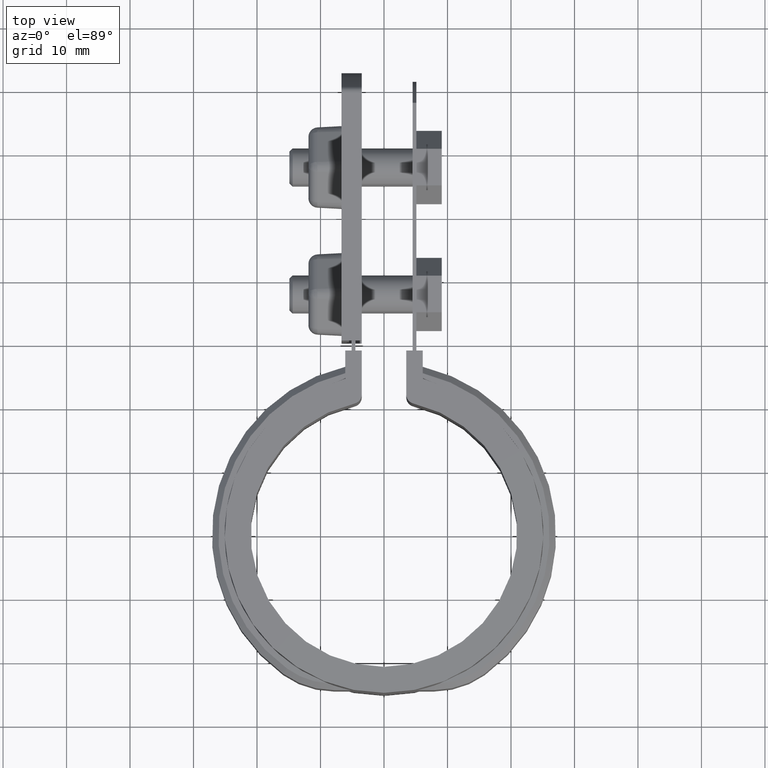
[diagram: clean part render]
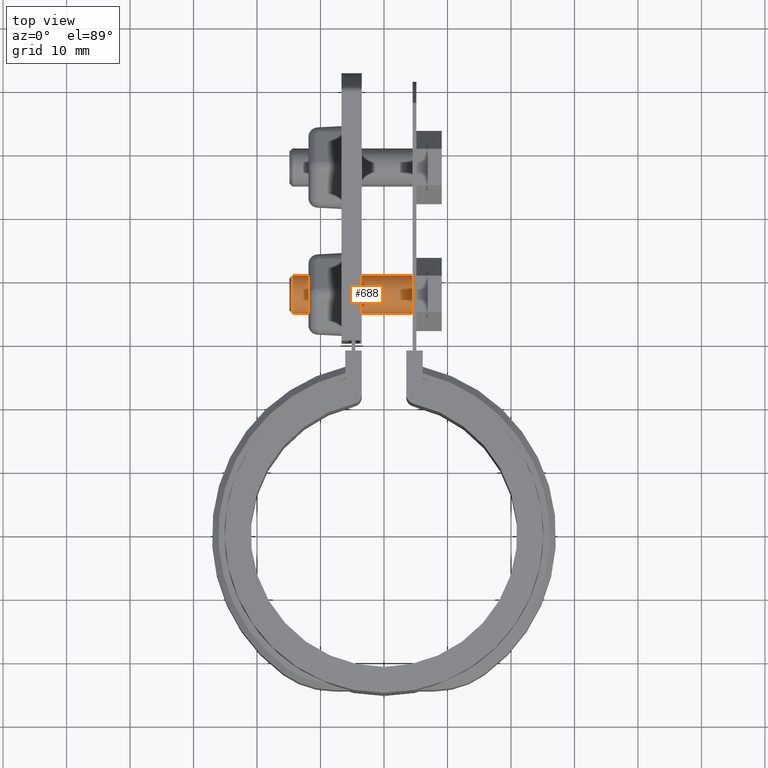
[diagram: same view with one face highlighted and labeled with its STEP entity id]
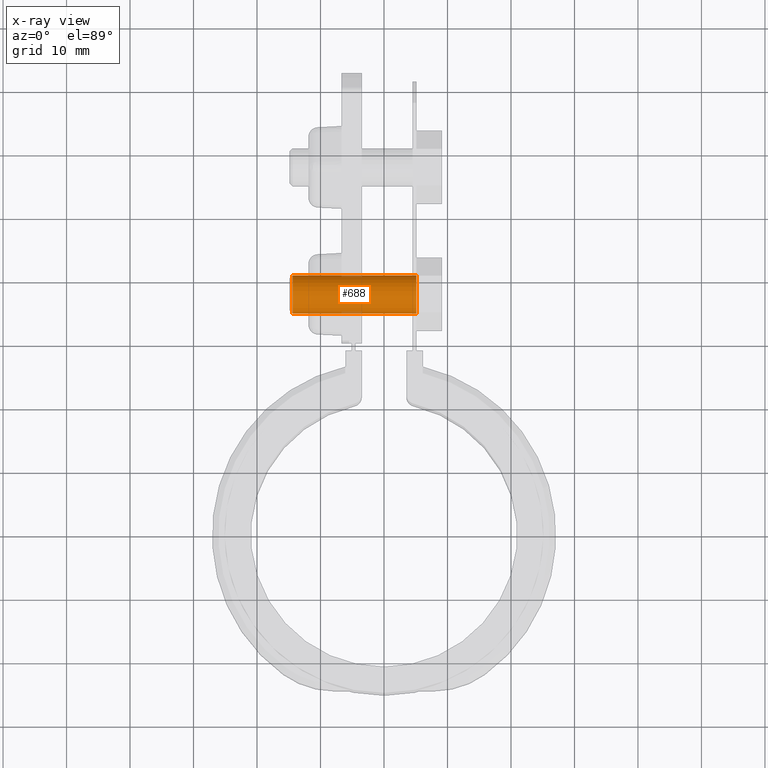
[diagram: x-ray of the same camera — body ghosted, the highlighted face saturated]
A machine part, top view. The second image highlights one B-rep face of the part: STEP entity #688.
The next image is the same camera in x-ray: the body ghosted, the highlighted face saturated — about 2% of this face is hidden behind the body in this view.
In plain terms, the highlighted cylindrical surface (bore or boss wall) has radius 3 mm, axis along (1, -0, 0).
Its self-contained STEP definition (entity closure, byte-faithful):
#688 = ADVANCED_FACE( '', ( #1405, #1406 ), #1407, .T. );
#1405 = FACE_OUTER_BOUND( '', #2793, .T. );
#1406 = FACE_OUTER_BOUND( '', #2794, .T. );
#1407 = CYLINDRICAL_SURFACE( '', #2795, 2.99999999999892 );
#2793 = EDGE_LOOP( '', ( #6222 ) );
#2794 = EDGE_LOOP( '', ( #6223 ) );
#2795 = AXIS2_PLACEMENT_3D( '', #6224, #6225, #6226 );
#6222 = ORIENTED_EDGE( '', *, *, #7242, .T. );
#6223 = ORIENTED_EDGE( '', *, *, #7236, .F. );
#6224 = CARTESIAN_POINT( '', ( 13.5487843911358, 37.8954076850486, -12.5000000000000 ) );
#6225 = DIRECTION( '', ( 1.00000000000000, -5.55523712946981E-050, 3.20731765211237E-050 ) );
#6226 = DIRECTION( '', ( -6.41463530422359E-050, -0.866025403784595, 0.499999999999729 ) );
#7236 = EDGE_CURVE( '', #8746, #8746, #8747, .F. );
#7242 = EDGE_CURVE( '', #8756, #8756, #8757, .T. );
#8746 = VERTEX_POINT( '', #12578 );
#8747 = CIRCLE( '', #12579, 2.99999999999892 );
#8756 = VERTEX_POINT( '', #12593 );
#8757 = CIRCLE( '', #12594, 2.99999999999892 );
#12578 = CARTESIAN_POINT( '', ( 5.10000000000000, 35.2973314736957, -11.0000000000014 ) );
#12579 = AXIS2_PLACEMENT_3D( '', #13872, #13873, #13874 );
#12593 = CARTESIAN_POINT( '', ( -14.4000000000000, 40.4934838964014, -13.9999999999986 ) );
#12594 = AXIS2_PLACEMENT_3D( '', #13880, #13881, #13882 );
#13872 = CARTESIAN_POINT( '', ( 5.10000000000000, 37.8954076850486, -12.5000000000000 ) );
#13873 = DIRECTION( '', ( -1.00000000000000, 5.55523712946981E-050, -3.20731765211237E-050 ) );
#13874 = DIRECTION( '', ( -6.41463530422359E-050, -0.866025403784595, 0.499999999999729 ) );
#13880 = CARTESIAN_POINT( '', ( -14.4000000000000, 37.8954076850486, -12.5000000000000 ) );
#13881 = DIRECTION( '', ( 1.00000000000000, -5.55523712946981E-050, 3.20731765211237E-050 ) );
#13882 = DIRECTION( '', ( 6.41463530422359E-050, 0.866025403784595, -0.499999999999729 ) );